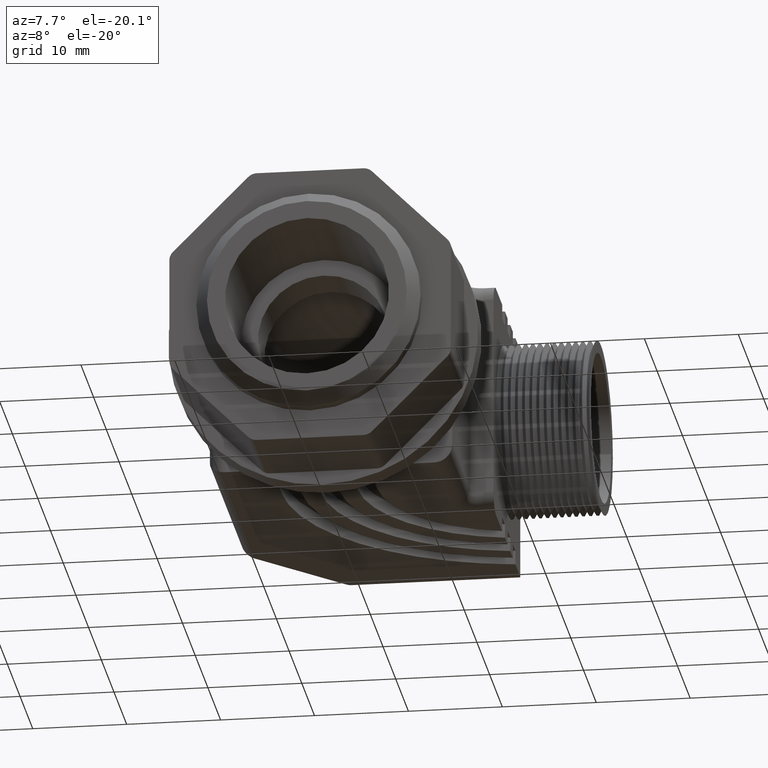
[diagram: clean part render]
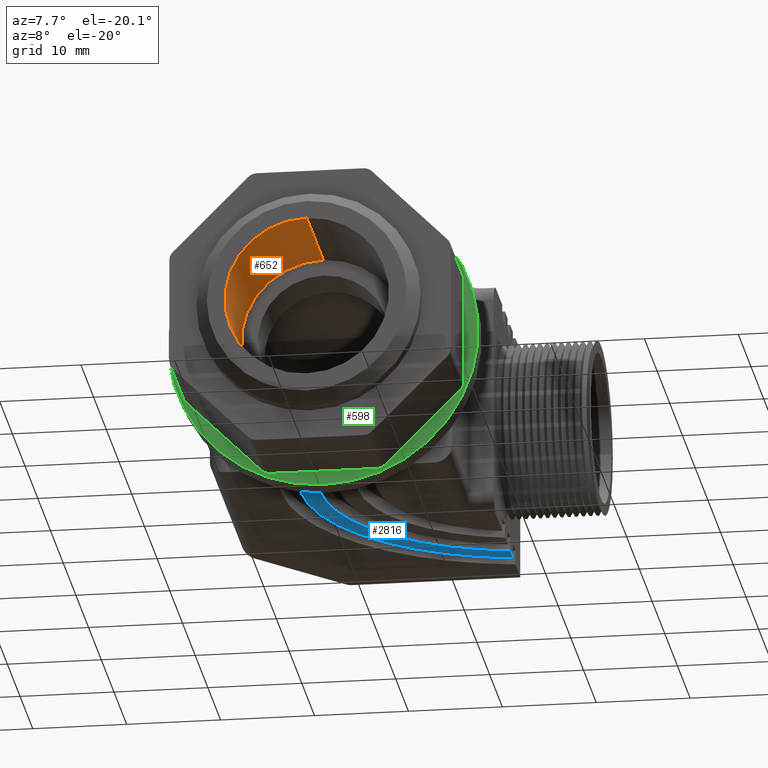
[diagram: same view with three faces highlighted in distinct colors, each labeled with its STEP entity id]
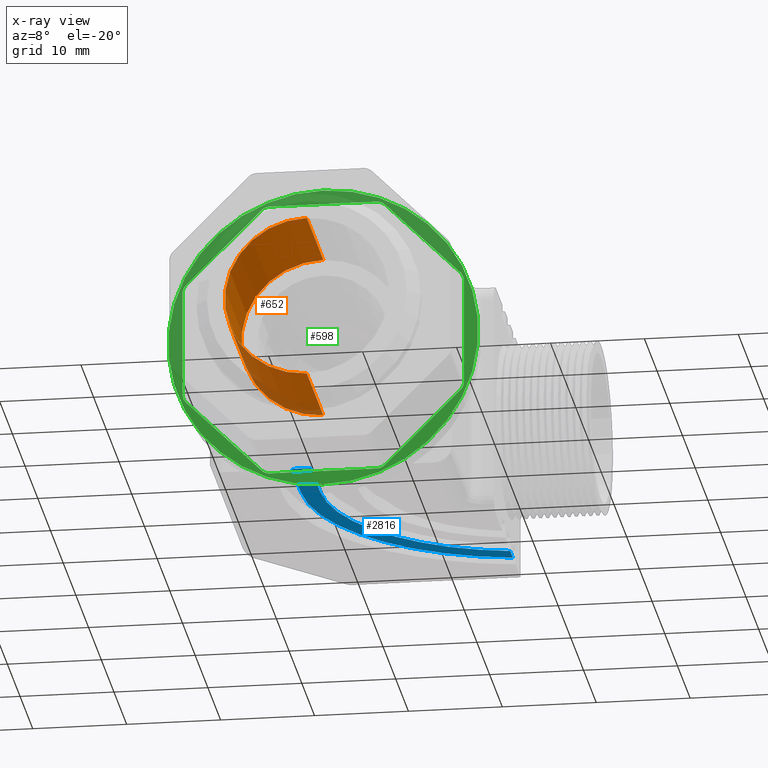
[diagram: x-ray of the same camera — body ghosted, the three highlighted faces saturated]
A machine part, auxiliary view with three faces highlighted in distinct colors.
The next image is the same camera in x-ray (body ghosted, the three faces saturated) — at least one of them is partly hidden behind the body in this view.
Their STEP definitions:

[orange] entity #652 — the highlighted cylindrical surface (partial cylindrical patch) has radius 8.7312 mm, axis along (-0, -1, -0).
#652 = ADVANCED_FACE ( 'NONE', ( #2149 ), #2148, .F. ) ;
#653 = VERTEX_POINT ( 'NONE', #2147 ) ;
#679 = EDGE_LOOP ( 'NONE', ( #774, #785, #767, #770 ) ) ;
#767 = ORIENTED_EDGE ( 'NONE', *, *, #768, .T. ) ;
#768 = EDGE_CURVE ( 'NONE', #787, #769, #3619, .T. ) ;
#769 = VERTEX_POINT ( 'NONE', #3614 ) ;
#770 = ORIENTED_EDGE ( 'NONE', *, *, #771, .F. ) ;
#771 = EDGE_CURVE ( 'NONE', #784, #769, #3613, .T. ) ;
#774 = ORIENTED_EDGE ( 'NONE', *, *, #775, .F. ) ;
#775 = EDGE_CURVE ( 'NONE', #653, #784, #3603, .T. ) ;
#784 = VERTEX_POINT ( 'NONE', #3650 ) ;
#785 = ORIENTED_EDGE ( 'NONE', *, *, #786, .T. ) ;
#786 = EDGE_CURVE ( 'NONE', #653, #787, #3649, .T. ) ;
#787 = VERTEX_POINT ( 'NONE', #3645 ) ;
#2143 = DIRECTION ( 'NONE',  ( 0.0000000000000000000, 0.0000000000000000000, -1.000000000000000000 ) ) ;
#2144 = DIRECTION ( 'NONE',  ( -0.0000000000000000000, -1.000000000000000000, -0.0000000000000000000 ) ) ;
#2145 = CARTESIAN_POINT ( 'NONE',  ( 0.0000000000000000000, 0.5120000000000000100, 0.0000000000000000000 ) ) ;
#2146 = AXIS2_PLACEMENT_3D ( 'NONE', #2145, #2144, #2143 ) ;
#2147 = CARTESIAN_POINT ( 'NONE',  ( 4.209584341264421800E-017, 0.5120000000000000100, 0.3437500000000000000 ) ) ;
#2148 = CYLINDRICAL_SURFACE ( 'NONE', #2146, 0.3437500000000000000 ) ;
#2149 = FACE_OUTER_BOUND ( 'NONE', #679, .T. ) ;
#3599 = DIRECTION ( 'NONE',  ( 0.0000000000000000000, 0.0000000000000000000, -1.000000000000000000 ) ) ;
#3600 = DIRECTION ( 'NONE',  ( 0.0000000000000000000, -1.000000000000000000, 0.0000000000000000000 ) ) ;
#3601 = CARTESIAN_POINT ( 'NONE',  ( 0.0000000000000000000, 0.5120000000000000100, 0.0000000000000000000 ) ) ;
#3602 = AXIS2_PLACEMENT_3D ( 'NONE', #3601, #3600, #3599 ) ;
#3603 = CIRCLE ( 'NONE', #3602, 0.3437500000000000000 ) ;
#3610 = DIRECTION ( 'NONE',  ( -0.0000000000000000000, -1.000000000000000000, -0.0000000000000000000 ) ) ;
#3611 = VECTOR ( 'NONE', #3610, 39.37007874015748100 ) ;
#3612 = CARTESIAN_POINT ( 'NONE',  ( 0.0000000000000000000, 0.5120000000000000100, -0.3437500000000000000 ) ) ;
#3613 = LINE ( 'NONE', #3612, #3611 ) ;
#3614 = CARTESIAN_POINT ( 'NONE',  ( 0.0000000000000000000, 0.0000000000000000000, -0.3437500000000000000 ) ) ;
#3615 = DIRECTION ( 'NONE',  ( 0.0000000000000000000, 0.0000000000000000000, -1.000000000000000000 ) ) ;
#3616 = DIRECTION ( 'NONE',  ( 0.0000000000000000000, -1.000000000000000000, 0.0000000000000000000 ) ) ;
#3617 = CARTESIAN_POINT ( 'NONE',  ( 0.0000000000000000000, 0.0000000000000000000, 0.0000000000000000000 ) ) ;
#3618 = AXIS2_PLACEMENT_3D ( 'NONE', #3617, #3616, #3615 ) ;
#3619 = CIRCLE ( 'NONE', #3618, 0.3437500000000000000 ) ;
#3645 = CARTESIAN_POINT ( 'NONE',  ( 4.209584341264421800E-017, 0.0000000000000000000, 0.3437500000000000000 ) ) ;
#3646 = DIRECTION ( 'NONE',  ( -0.0000000000000000000, -1.000000000000000000, -0.0000000000000000000 ) ) ;
#3647 = VECTOR ( 'NONE', #3646, 39.37007874015748100 ) ;
#3648 = CARTESIAN_POINT ( 'NONE',  ( 4.209584341264421800E-017, 0.5120000000000000100, 0.3437500000000000000 ) ) ;
#3649 = LINE ( 'NONE', #3648, #3647 ) ;
#3650 = CARTESIAN_POINT ( 'NONE',  ( 0.0000000000000000000, 0.5120000000000000100, -0.3437500000000000000 ) ) ;

[blue] entity #2816 — the highlighted planar face has unit normal (0, 0, 1).
#2606 = VERTEX_POINT ( 'NONE', #4957 ) ;
#2607 = VERTEX_POINT ( 'NONE', #4959 ) ;
#2754 = EDGE_CURVE ( 'NONE', #2606, #2607, #5263, .T. ) ;
#2771 = EDGE_CURVE ( 'NONE', #2781, #2772, #5289, .T. ) ;
#2772 = VERTEX_POINT ( 'NONE', #5284 ) ;
#2781 = VERTEX_POINT ( 'NONE', #5330 ) ;
#2782 = ORIENTED_EDGE ( 'NONE', *, *, #2771, .T. ) ;
#2816 = ADVANCED_FACE ( 'NONE', ( #5349 ), #5348, .F. ) ;
#2820 = ORIENTED_EDGE ( 'NONE', *, *, #2826, .F. ) ;
#2825 = EDGE_LOOP ( 'NONE', ( #2820, #2782, #2865, #2836, #2840, #2869 ) ) ;
#2826 = EDGE_CURVE ( 'NONE', #2781, #2606, #5338, .T. ) ;
#2835 = VERTEX_POINT ( 'NONE', #5368 ) ;
#2836 = ORIENTED_EDGE ( 'NONE', *, *, #2838, .F. ) ;
#2837 = EDGE_CURVE ( 'NONE', #2835, #2772, #5367, .T. ) ;
#2838 = EDGE_CURVE ( 'NONE', #2839, #2835, #5363, .T. ) ;
#2839 = VERTEX_POINT ( 'NONE', #5422 ) ;
#2840 = ORIENTED_EDGE ( 'NONE', *, *, #2868, .T. ) ;
#2865 = ORIENTED_EDGE ( 'NONE', *, *, #2837, .F. ) ;
#2868 = EDGE_CURVE ( 'NONE', #2839, #2607, #5451, .T. ) ;
#2869 = ORIENTED_EDGE ( 'NONE', *, *, #2754, .F. ) ;
#4957 = CARTESIAN_POINT ( 'NONE',  ( -0.1600000000000000000, 0.7139999999999999700, -0.5000000000000000000 ) ) ;
#4959 = CARTESIAN_POINT ( 'NONE',  ( -0.07999999999999998800, 0.7139999999999999700, -0.5000000000000000000 ) ) ;
#5260 = DIRECTION ( 'NONE',  ( 1.000000000000000000, -0.0000000000000000000, -0.0000000000000000000 ) ) ;
#5261 = VECTOR ( 'NONE', #5260, 39.37007874015748100 ) ;
#5262 = CARTESIAN_POINT ( 'NONE',  ( 6.829619984160658000E-017, 0.7139999999999999700, -0.5000000000000000000 ) ) ;
#5263 = LINE ( 'NONE', #5262, #5261 ) ;
#5284 = CARTESIAN_POINT ( 'NONE',  ( 0.6069822449999997500, 1.898691227149103000, -0.5000000000000000000 ) ) ;
#5285 = DIRECTION ( 'NONE',  ( -1.000000000000000000, 0.0000000000000000000, 0.0000000000000000000 ) ) ;
#5286 = DIRECTION ( 'NONE',  ( 0.0000000000000000000, 0.0000000000000000000, -1.000000000000000000 ) ) ;
#5287 = CARTESIAN_POINT ( 'NONE',  ( 0.7500000000000001100, 1.000000000000000200, -0.5000000000000000000 ) ) ;
#5288 = AXIS2_PLACEMENT_3D ( 'NONE', #5287, #5286, #5285 ) ;
#5289 = CIRCLE ( 'NONE', #5288, 0.9100000000000001400 ) ;
#5330 = CARTESIAN_POINT ( 'NONE',  ( -0.1600000000000000300, 1.000000000000000200, -0.5000000000000000000 ) ) ;
#5335 = DIRECTION ( 'NONE',  ( -0.0000000000000000000, -1.000000000000000000, 0.0000000000000000000 ) ) ;
#5336 = VECTOR ( 'NONE', #5335, 39.37007874015748100 ) ;
#5337 = CARTESIAN_POINT ( 'NONE',  ( -0.1600000000000000000, 1.000000000000000200, -0.5000000000000000000 ) ) ;
#5338 = LINE ( 'NONE', #5337, #5336 ) ;
#5344 = DIRECTION ( 'NONE',  ( 1.000000000000000000, 0.0000000000000000000, -0.0000000000000000000 ) ) ;
#5345 = DIRECTION ( 'NONE',  ( 0.0000000000000000000, 0.0000000000000000000, 1.000000000000000000 ) ) ;
#5346 = CARTESIAN_POINT ( 'NONE',  ( 0.5630177549999998400, 1.250000000000000200, -0.5000000000000000000 ) ) ;
#5347 = AXIS2_PLACEMENT_3D ( 'NONE', #5346, #5345, #5344 ) ;
#5348 = PLANE ( 'NONE',  #5347 ) ;
#5349 = FACE_OUTER_BOUND ( 'NONE', #2825, .T. ) ;
#5363 = CIRCLE ( 'NONE', #5426, 0.8300000000000000700 ) ;
#5364 = DIRECTION ( 'NONE',  ( -1.517693329813479600E-016, 1.000000000000000000, -0.0000000000000000000 ) ) ;
#5365 = VECTOR ( 'NONE', #5364, 39.37007874015748100 ) ;
#5366 = CARTESIAN_POINT ( 'NONE',  ( 0.6069822449999997500, 2.200000000000000200, -0.5000000000000000000 ) ) ;
#5367 = LINE ( 'NONE', #5366, #5365 ) ;
#5368 = CARTESIAN_POINT ( 'NONE',  ( 0.6069822449999997500, 1.817585421686786600, -0.5000000000000001100 ) ) ;
#5422 = CARTESIAN_POINT ( 'NONE',  ( -0.07999999999999996000, 1.000000000000000200, -0.5000000000000001100 ) ) ;
#5423 = DIRECTION ( 'NONE',  ( -1.000000000000000000, 0.0000000000000000000, 0.0000000000000000000 ) ) ;
#5424 = DIRECTION ( 'NONE',  ( 0.0000000000000000000, 0.0000000000000000000, -1.000000000000000000 ) ) ;
#5425 = CARTESIAN_POINT ( 'NONE',  ( 0.7500000000000001100, 1.000000000000000200, -0.5000000000000001100 ) ) ;
#5426 = AXIS2_PLACEMENT_3D ( 'NONE', #5425, #5424, #5423 ) ;
#5448 = DIRECTION ( 'NONE',  ( 0.0000000000000000000, -1.000000000000000000, -0.0000000000000000000 ) ) ;
#5449 = VECTOR ( 'NONE', #5448, 39.37007874015748100 ) ;
#5450 = CARTESIAN_POINT ( 'NONE',  ( -0.07999999999999996000, 1.250000000000000200, -0.5000000000000000000 ) ) ;
#5451 = LINE ( 'NONE', #5450, #5449 ) ;

[green] entity #598 — the highlighted planar face has unit normal (0, -1, 0).
#589 = VERTEX_POINT ( 'NONE', #2067 ) ;
#590 = ORIENTED_EDGE ( 'NONE', *, *, #591, .F. ) ;
#591 = EDGE_CURVE ( 'NONE', #592, #589, #2066, .T. ) ;
#592 = VERTEX_POINT ( 'NONE', #2062 ) ;
#593 = ORIENTED_EDGE ( 'NONE', *, *, #594, .T. ) ;
#594 = EDGE_CURVE ( 'NONE', #592, #595, #2061, .T. ) ;
#595 = VERTEX_POINT ( 'NONE', #2056 ) ;
#598 = ADVANCED_FACE ( 'NONE', ( #2055, #2054 ), #2053, .T. ) ;
#599 = EDGE_LOOP ( 'NONE', ( #619, #620 ) ) ;
#604 = ORIENTED_EDGE ( 'NONE', *, *, #605, .T. ) ;
#605 = EDGE_CURVE ( 'NONE', #668, #669, #2047, .T. ) ;
#606 = ORIENTED_EDGE ( 'NONE', *, *, #607, .T. ) ;
#607 = EDGE_CURVE ( 'NONE', #624, #608, #2042, .T. ) ;
#608 = VERTEX_POINT ( 'NONE', #2037 ) ;
#609 = ORIENTED_EDGE ( 'NONE', *, *, #610, .F. ) ;
#610 = EDGE_CURVE ( 'NONE', #611, #608, #2101, .T. ) ;
#611 = VERTEX_POINT ( 'NONE', #2097 ) ;
#612 = ORIENTED_EDGE ( 'NONE', *, *, #613, .T. ) ;
#613 = EDGE_CURVE ( 'NONE', #611, #614, #2096, .T. ) ;
#614 = VERTEX_POINT ( 'NONE', #2091 ) ;
#615 = ORIENTED_EDGE ( 'NONE', *, *, #616, .F. ) ;
#616 = EDGE_CURVE ( 'NONE', #617, #614, #2090, .T. ) ;
#617 = VERTEX_POINT ( 'NONE', #2086 ) ;
#618 = ORIENTED_EDGE ( 'NONE', *, *, #670, .T. ) ;
#619 = ORIENTED_EDGE ( 'NONE', *, *, #704, .F. ) ;
#620 = ORIENTED_EDGE ( 'NONE', *, *, #651, .F. ) ;
#621 = EDGE_LOOP ( 'NONE', ( #622, #606, #609, #612, #615, #618, #590, #593, #666, #604, #1204, #1252, #1263, #1151, #1205, #1293 ) ) ;
#622 = ORIENTED_EDGE ( 'NONE', *, *, #623, .F. ) ;
#623 = EDGE_CURVE ( 'NONE', #624, #625, #2085, .T. ) ;
#624 = VERTEX_POINT ( 'NONE', #2081 ) ;
#625 = VERTEX_POINT ( 'NONE', #2080 ) ;
#651 = EDGE_CURVE ( 'NONE', #706, #705, #2158, .T. ) ;
#666 = ORIENTED_EDGE ( 'NONE', *, *, #667, .F. ) ;
#667 = EDGE_CURVE ( 'NONE', #668, #595, #3419, .T. ) ;
#668 = VERTEX_POINT ( 'NONE', #3415 ) ;
#669 = VERTEX_POINT ( 'NONE', #3414 ) ;
#670 = EDGE_CURVE ( 'NONE', #617, #589, #3413, .T. ) ;
#704 = EDGE_CURVE ( 'NONE', #705, #706, #3482, .T. ) ;
#705 = VERTEX_POINT ( 'NONE', #3477 ) ;
#706 = VERTEX_POINT ( 'NONE', #3476 ) ;
#762 = EDGE_CURVE ( 'NONE', #1216, #669, #3577, .T. ) ;
#1144 = VERTEX_POINT ( 'NONE', #3878 ) ;
#1150 = EDGE_CURVE ( 'NONE', #1216, #1206, #3877, .T. ) ;
#1151 = ORIENTED_EDGE ( 'NONE', *, *, #1251, .T. ) ;
#1156 = EDGE_CURVE ( 'NONE', #1243, #1253, #3868, .T. ) ;
#1204 = ORIENTED_EDGE ( 'NONE', *, *, #762, .F. ) ;
#1205 = ORIENTED_EDGE ( 'NONE', *, *, #1156, .F. ) ;
#1206 = VERTEX_POINT ( 'NONE', #3983 ) ;
#1216 = VERTEX_POINT ( 'NONE', #3976 ) ;
#1243 = VERTEX_POINT ( 'NONE', #4051 ) ;
#1251 = EDGE_CURVE ( 'NONE', #1144, #1253, #4044, .T. ) ;
#1252 = ORIENTED_EDGE ( 'NONE', *, *, #1150, .T. ) ;
#1253 = VERTEX_POINT ( 'NONE', #4039 ) ;
#1263 = ORIENTED_EDGE ( 'NONE', *, *, #1275, .F. ) ;
#1275 = EDGE_CURVE ( 'NONE', #1144, #1206, #4105, .T. ) ;
#1293 = ORIENTED_EDGE ( 'NONE', *, *, #1294, .T. ) ;
#1294 = EDGE_CURVE ( 'NONE', #1243, #625, #4150, .T. ) ;
#2037 = CARTESIAN_POINT ( 'NONE',  ( 0.5753553390593273400, 0.5100000000000000100, -0.2590306627407987800 ) ) ;
#2038 = DIRECTION ( 'NONE',  ( 1.365923996832131400E-015, 0.0000000000000000000, -1.000000000000000000 ) ) ;
#2039 = DIRECTION ( 'NONE',  ( -0.0000000000000000000, 1.000000000000000000, -0.0000000000000000000 ) ) ;
#2040 = CARTESIAN_POINT ( 'NONE',  ( 0.5399999999999999200, 0.5100000000000000100, -0.2236753236814713300 ) ) ;
#2041 = AXIS2_PLACEMENT_3D ( 'NONE', #2040, #2039, #2038 ) ;
#2042 = CIRCLE ( 'NONE', #2041, 0.05000000000000001000 ) ;
#2044 = DIRECTION ( 'NONE',  ( 0.0000000000000000000, 0.0000000000000000000, -1.000000000000000000 ) ) ;
#2045 = DIRECTION ( 'NONE',  ( -0.0000000000000000000, 1.000000000000000000, -0.0000000000000000000 ) ) ;
#2046 = AXIS2_PLACEMENT_3D ( 'NONE', #2051, #2045, #2044 ) ;
#2047 = CIRCLE ( 'NONE', #2046, 0.05000000000000001000 ) ;
#2048 = DIRECTION ( 'NONE',  ( 0.0000000000000000000, -0.0000000000000000000, -1.000000000000000000 ) ) ;
#2049 = DIRECTION ( 'NONE',  ( 0.0000000000000000000, -1.000000000000000000, 0.0000000000000000000 ) ) ;
#2050 = AXIS2_PLACEMENT_3D ( 'NONE', #2052, #2049, #2048 ) ;
#2051 = CARTESIAN_POINT ( 'NONE',  ( -0.5399999999999998100, 0.5100000000000000100, 0.2236753236814716700 ) ) ;
#2052 = CARTESIAN_POINT ( 'NONE',  ( 0.0000000000000000000, 0.5100000000000000100, 0.0000000000000000000 ) ) ;
#2053 = PLANE ( 'NONE',  #2050 ) ;
#2054 = FACE_BOUND ( 'NONE', #621, .T. ) ;
#2055 = FACE_OUTER_BOUND ( 'NONE', #599, .T. ) ;
#2056 = CARTESIAN_POINT ( 'NONE',  ( -0.5899999999999998600, 0.5100000000000000100, -0.2236753236814710600 ) ) ;
#2057 = DIRECTION ( 'NONE',  ( -1.365923996832131400E-015, 0.0000000000000000000, -1.000000000000000000 ) ) ;
#2058 = DIRECTION ( 'NONE',  ( -0.0000000000000000000, 1.000000000000000000, -0.0000000000000000000 ) ) ;
#2059 = CARTESIAN_POINT ( 'NONE',  ( -0.5399999999999998100, 0.5100000000000000100, -0.2236753236814710600 ) ) ;
#2060 = AXIS2_PLACEMENT_3D ( 'NONE', #2059, #2058, #2057 ) ;
#2061 = CIRCLE ( 'NONE', #2060, 0.05000000000000001000 ) ;
#2062 = CARTESIAN_POINT ( 'NONE',  ( -0.5753553390593272300, 0.5100000000000000100, -0.2590306627407985000 ) ) ;
#2063 = DIRECTION ( 'NONE',  ( 0.7071067811865475700, 0.0000000000000000000, -0.7071067811865473500 ) ) ;
#2064 = VECTOR ( 'NONE', #2063, 39.37007874015748900 ) ;
#2065 = CARTESIAN_POINT ( 'NONE',  ( -0.5899999999999998600, 0.5100000000000000100, -0.2443860018001258700 ) ) ;
#2066 = LINE ( 'NONE', #2065, #2064 ) ;
#2067 = CARTESIAN_POINT ( 'NONE',  ( -0.2590306627407984500, 0.5100000000000000100, -0.5753553390593271200 ) ) ;
#2080 = CARTESIAN_POINT ( 'NONE',  ( 0.5899999999999999700, 0.5100000000000000100, 0.2236753236814715800 ) ) ;
#2081 = CARTESIAN_POINT ( 'NONE',  ( 0.5899999999999999700, 0.5100000000000000100, -0.2236753236814713300 ) ) ;
#2082 = DIRECTION ( 'NONE',  ( 0.0000000000000000000, 0.0000000000000000000, 1.000000000000000000 ) ) ;
#2083 = VECTOR ( 'NONE', #2082, 39.37007874015748100 ) ;
#2084 = CARTESIAN_POINT ( 'NONE',  ( 0.5899999999999999700, 0.5100000000000000100, -0.2443860018001261200 ) ) ;
#2085 = LINE ( 'NONE', #2084, #2083 ) ;
#2086 = CARTESIAN_POINT ( 'NONE',  ( -0.2236753236814710000, 0.5100000000000000100, -0.5899999999999998600 ) ) ;
#2087 = DIRECTION ( 'NONE',  ( 1.000000000000000000, 0.0000000000000000000, 0.0000000000000000000 ) ) ;
#2088 = VECTOR ( 'NONE', #2087, 39.37007874015748100 ) ;
#2089 = CARTESIAN_POINT ( 'NONE',  ( -0.2443860018001258200, 0.5100000000000000100, -0.5899999999999998600 ) ) ;
#2090 = LINE ( 'NONE', #2089, #2088 ) ;
#2091 = CARTESIAN_POINT ( 'NONE',  ( 0.2236753236814714700, 0.5100000000000000100, -0.5899999999999998600 ) ) ;
#2092 = DIRECTION ( 'NONE',  ( 3.414809992080328300E-015, 0.0000000000000000000, -1.000000000000000000 ) ) ;
#2093 = DIRECTION ( 'NONE',  ( -0.0000000000000000000, 1.000000000000000000, -0.0000000000000000000 ) ) ;
#2094 = CARTESIAN_POINT ( 'NONE',  ( 0.2236753236814714700, 0.5100000000000000100, -0.5399999999999998100 ) ) ;
#2095 = AXIS2_PLACEMENT_3D ( 'NONE', #2094, #2093, #2092 ) ;
#2096 = CIRCLE ( 'NONE', #2095, 0.05000000000000001000 ) ;
#2097 = CARTESIAN_POINT ( 'NONE',  ( 0.2590306627407988300, 0.5100000000000000100, -0.5753553390593272300 ) ) ;
#2098 = DIRECTION ( 'NONE',  ( 0.7071067811865475700, 0.0000000000000000000, 0.7071067811865473500 ) ) ;
#2099 = VECTOR ( 'NONE', #2098, 39.37007874015748900 ) ;
#2100 = CARTESIAN_POINT ( 'NONE',  ( 0.2443860018001262100, 0.5100000000000000100, -0.5899999999999998600 ) ) ;
#2101 = LINE ( 'NONE', #2100, #2099 ) ;
#2150 = DIRECTION ( 'NONE',  ( 0.0000000000000000000, 0.0000000000000000000, -1.000000000000000000 ) ) ;
#2151 = DIRECTION ( 'NONE',  ( -0.0000000000000000000, 1.000000000000000000, -0.0000000000000000000 ) ) ;
#2152 = CARTESIAN_POINT ( 'NONE',  ( 0.0000000000000000000, 0.5100000000000000100, 0.0000000000000000000 ) ) ;
#2153 = AXIS2_PLACEMENT_3D ( 'NONE', #2152, #2151, #2150 ) ;
#2158 = CIRCLE ( 'NONE', #2153, 0.6499999999999998000 ) ;
#3409 = DIRECTION ( 'NONE',  ( 0.0000000000000000000, 0.0000000000000000000, -1.000000000000000000 ) ) ;
#3410 = DIRECTION ( 'NONE',  ( -0.0000000000000000000, 1.000000000000000000, -0.0000000000000000000 ) ) ;
#3411 = CARTESIAN_POINT ( 'NONE',  ( -0.2236753236814710000, 0.5100000000000000100, -0.5399999999999998100 ) ) ;
#3412 = AXIS2_PLACEMENT_3D ( 'NONE', #3411, #3410, #3409 ) ;
#3413 = CIRCLE ( 'NONE', #3412, 0.05000000000000001000 ) ;
#3414 = CARTESIAN_POINT ( 'NONE',  ( -0.5753553390593273400, 0.5100000000000000100, 0.2590306627407990000 ) ) ;
#3415 = CARTESIAN_POINT ( 'NONE',  ( -0.5899999999999998600, 0.5100000000000000100, 0.2236753236814716700 ) ) ;
#3416 = DIRECTION ( 'NONE',  ( 0.0000000000000000000, 0.0000000000000000000, -1.000000000000000000 ) ) ;
#3417 = VECTOR ( 'NONE', #3416, 39.37007874015748100 ) ;
#3418 = CARTESIAN_POINT ( 'NONE',  ( -0.5899999999999998600, 0.5100000000000000100, 0.2443860018001264600 ) ) ;
#3419 = LINE ( 'NONE', #3418, #3417 ) ;
#3476 = CARTESIAN_POINT ( 'NONE',  ( 7.959941299845449200E-017, 0.5100000000000000100, -0.6499999999999998000 ) ) ;
#3477 = CARTESIAN_POINT ( 'NONE',  ( 0.0000000000000000000, 0.5100000000000000100, 0.6499999999999998000 ) ) ;
#3478 = DIRECTION ( 'NONE',  ( 0.0000000000000000000, 0.0000000000000000000, -1.000000000000000000 ) ) ;
#3479 = DIRECTION ( 'NONE',  ( -0.0000000000000000000, 1.000000000000000000, -0.0000000000000000000 ) ) ;
#3480 = CARTESIAN_POINT ( 'NONE',  ( 0.0000000000000000000, 0.5100000000000000100, 0.0000000000000000000 ) ) ;
#3481 = AXIS2_PLACEMENT_3D ( 'NONE', #3480, #3479, #3478 ) ;
#3482 = CIRCLE ( 'NONE', #3481, 0.6499999999999998000 ) ;
#3571 = DIRECTION ( 'NONE',  ( -0.7071067811865474600, 0.0000000000000000000, -0.7071067811865474600 ) ) ;
#3572 = VECTOR ( 'NONE', #3571, 39.37007874015748900 ) ;
#3573 = CARTESIAN_POINT ( 'NONE',  ( -0.2443860018001262300, 0.5100000000000000100, 0.5900000000000000800 ) ) ;
#3577 = LINE ( 'NONE', #3573, #3572 ) ;
#3865 = DIRECTION ( 'NONE',  ( -0.7071067811865473500, 0.0000000000000000000, 0.7071067811865475700 ) ) ;
#3866 = VECTOR ( 'NONE', #3865, 39.37007874015748900 ) ;
#3867 = CARTESIAN_POINT ( 'NONE',  ( 0.5899999999999999700, 0.5100000000000000100, 0.2443860018001263200 ) ) ;
#3868 = LINE ( 'NONE', #3867, #3866 ) ;
#3873 = DIRECTION ( 'NONE',  ( 0.0000000000000000000, 0.0000000000000000000, -1.000000000000000000 ) ) ;
#3874 = DIRECTION ( 'NONE',  ( -0.0000000000000000000, 1.000000000000000000, -0.0000000000000000000 ) ) ;
#3875 = CARTESIAN_POINT ( 'NONE',  ( -0.2236753236814714700, 0.5100000000000000100, 0.5400000000000000400 ) ) ;
#3876 = AXIS2_PLACEMENT_3D ( 'NONE', #3875, #3874, #3873 ) ;
#3877 = CIRCLE ( 'NONE', #3876, 0.05000000000000001000 ) ;
#3878 = CARTESIAN_POINT ( 'NONE',  ( 0.2236753236814714700, 0.5100000000000000100, 0.5900000000000000800 ) ) ;
#3976 = CARTESIAN_POINT ( 'NONE',  ( -0.2590306627407988300, 0.5100000000000000100, 0.5753553390593274500 ) ) ;
#3983 = CARTESIAN_POINT ( 'NONE',  ( -0.2236753236814714700, 0.5100000000000000100, 0.5900000000000000800 ) ) ;
#4039 = CARTESIAN_POINT ( 'NONE',  ( 0.2590306627407989400, 0.5100000000000000100, 0.5753553390593274500 ) ) ;
#4040 = DIRECTION ( 'NONE',  ( 0.0000000000000000000, 0.0000000000000000000, -1.000000000000000000 ) ) ;
#4041 = DIRECTION ( 'NONE',  ( -0.0000000000000000000, 1.000000000000000000, -0.0000000000000000000 ) ) ;
#4042 = CARTESIAN_POINT ( 'NONE',  ( 0.2236753236814714700, 0.5100000000000000100, 0.5400000000000001500 ) ) ;
#4043 = AXIS2_PLACEMENT_3D ( 'NONE', #4042, #4041, #4040 ) ;
#4044 = CIRCLE ( 'NONE', #4043, 0.05000000000000001000 ) ;
#4051 = CARTESIAN_POINT ( 'NONE',  ( 0.5753553390593273400, 0.5100000000000000100, 0.2590306627407989400 ) ) ;
#4102 = DIRECTION ( 'NONE',  ( -1.000000000000000000, 0.0000000000000000000, -1.397301795899573700E-016 ) ) ;
#4103 = VECTOR ( 'NONE', #4102, 39.37007874015748100 ) ;
#4104 = CARTESIAN_POINT ( 'NONE',  ( 0.2443860018001263200, 0.5100000000000000100, 0.5900000000000000800 ) ) ;
#4105 = LINE ( 'NONE', #4104, #4103 ) ;
#4146 = DIRECTION ( 'NONE',  ( 0.0000000000000000000, 0.0000000000000000000, -1.000000000000000000 ) ) ;
#4147 = DIRECTION ( 'NONE',  ( -0.0000000000000000000, 1.000000000000000000, -0.0000000000000000000 ) ) ;
#4148 = CARTESIAN_POINT ( 'NONE',  ( 0.5399999999999999200, 0.5100000000000000100, 0.2236753236814715800 ) ) ;
#4149 = AXIS2_PLACEMENT_3D ( 'NONE', #4148, #4147, #4146 ) ;
#4150 = CIRCLE ( 'NONE', #4149, 0.05000000000000001000 ) ;